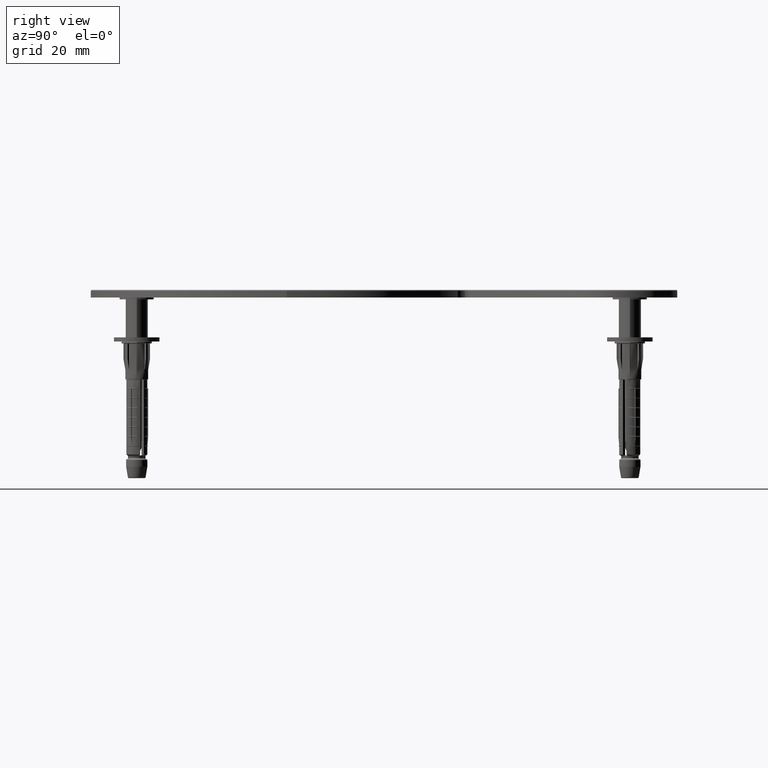
[diagram: clean part render]
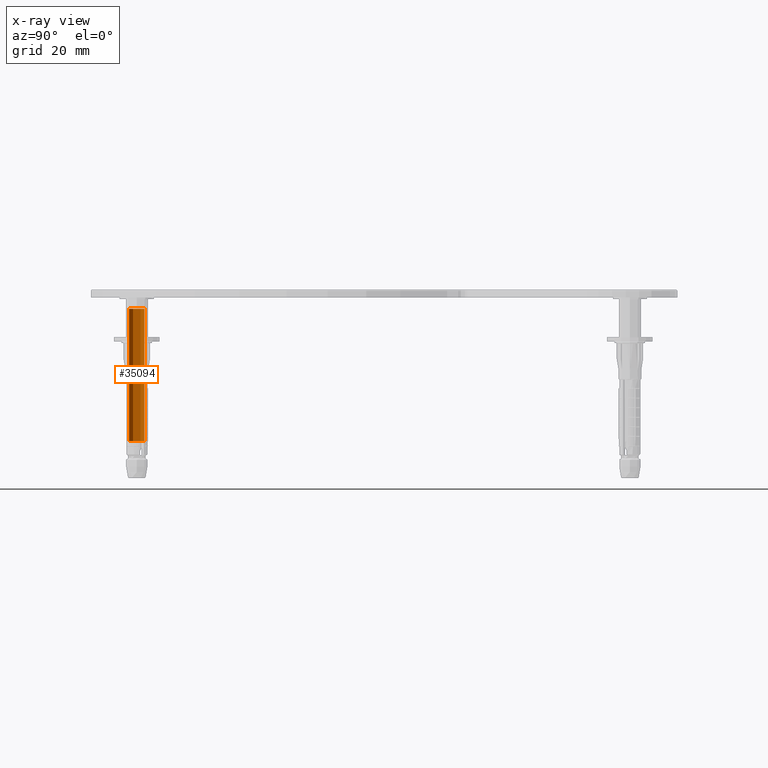
[diagram: x-ray — body ghosted, one internal face saturated and labeled with its STEP entity id]
A machine part, right view, then the same camera in x-ray: the body is ghosted and one INTERNAL B-rep face — a face not visible from any outside direction — is saturated and labeled: STEP entity #35094.
In plain terms, the highlighted cylindrical surface (edge-blend (fillet) strip) has radius 2 mm, axis along (-0, -0, -1).
Its self-contained STEP definition (entity closure, byte-faithful):
#92 = CARTESIAN_POINT ( 'NONE',  ( 2.449293598294702963E-16, -1.999999999999981792, -35.40999999999990422 ) ) ;
#560 = DIRECTION ( 'NONE',  ( 1.314919014442269209E-41, 1.000000000000000000, 0.000000000000000000 ) ) ;
#584 = AXIS2_PLACEMENT_3D ( 'NONE', #36523, #6320, #24768 ) ;
#949 = CARTESIAN_POINT ( 'NONE',  ( 0.000000000000000000, 1.387778780781445676E-14, -39.99999999999988631 ) ) ;
#1037 = CARTESIAN_POINT ( 'NONE',  ( 2.629838028884532811E-41, 2.000000000000009770, -35.40999999999990422 ) ) ;
#2187 = VERTEX_POINT ( 'NONE', #1037 ) ;
#2456 = ORIENTED_EDGE ( 'NONE', *, *, #32505, .T. ) ;
#2508 = ORIENTED_EDGE ( 'NONE', *, *, #19493, .F. ) ;
#3002 = DIRECTION ( 'NONE',  ( 1.314919014442269209E-41, 1.000000000000000000, 0.000000000000000000 ) ) ;
#3792 = FACE_OUTER_BOUND ( 'NONE', #14318, .T. ) ;
#4465 = ORIENTED_EDGE ( 'NONE', *, *, #34034, .T. ) ;
#4748 = CYLINDRICAL_SURFACE ( 'NONE', #22634, 1.999999999999995781 ) ;
#5283 = LINE ( 'NONE', #5651, #22051 ) ;
#5651 = CARTESIAN_POINT ( 'NONE',  ( 2.629838028884532811E-41, 2.000000000000009770, -39.99999999999988631 ) ) ;
#6193 = VERTEX_POINT ( 'NONE', #31525 ) ;
#6320 = DIRECTION ( 'NONE',  ( -2.548694494986879549E-32, -1.530808498934202910E-17, -1.000000000000000000 ) ) ;
#6447 = VERTEX_POINT ( 'NONE', #92 ) ;
#10758 = AXIS2_PLACEMENT_3D ( 'NONE', #18528, #36961, #3002 ) ;
#12019 = CARTESIAN_POINT ( 'NONE',  ( 2.449293598294697047E-16, -1.999999999999981792, -39.99999999999988631 ) ) ;
#13452 = EDGE_CURVE ( 'NONE', #6193, #6447, #33070, .T. ) ;
#14318 = EDGE_LOOP ( 'NONE', ( #16530, #2456, #4465, #2508 ) ) ;
#15833 = CIRCLE ( 'NONE', #584, 1.999999999999995781 ) ;
#16530 = ORIENTED_EDGE ( 'NONE', *, *, #13452, .F. ) ;
#18528 = CARTESIAN_POINT ( 'NONE',  ( 0.000000000000000000, 1.387778780781445676E-14, -35.40999999999990422 ) ) ;
#19493 = EDGE_CURVE ( 'NONE', #6447, #2187, #38457, .T. ) ;
#22051 = VECTOR ( 'NONE', #32923, 1000.000000000000000 ) ;
#22634 = AXIS2_PLACEMENT_3D ( 'NONE', #949, #34360, #560 ) ;
#23973 = VECTOR ( 'NONE', #26853, 1000.000000000000000 ) ;
#24768 = DIRECTION ( 'NONE',  ( -1.314919014442268700E-41, -1.000000000000000000, 0.000000000000000000 ) ) ;
#26853 = DIRECTION ( 'NONE',  ( -2.548694494986879549E-32, -1.530808498934207841E-17, -1.000000000000000000 ) ) ;
#31525 = CARTESIAN_POINT ( 'NONE',  ( 2.449293598294719726E-16, -1.999999999999995781, -0.5000000000000073275 ) ) ;
#31883 = CARTESIAN_POINT ( 'NONE',  ( 5.618597014461522366E-31, 1.999999999999995781, -0.5000000000000073275 ) ) ;
#32505 = EDGE_CURVE ( 'NONE', #6193, #33778, #15833, .T. ) ;
#32923 = DIRECTION ( 'NONE',  ( -2.548694494986879549E-32, -1.530808498934207841E-17, -1.000000000000000000 ) ) ;
#33070 = LINE ( 'NONE', #12019, #23973 ) ;
#33778 = VERTEX_POINT ( 'NONE', #31883 ) ;
#34034 = EDGE_CURVE ( 'NONE', #33778, #2187, #5283, .T. ) ;
#34360 = DIRECTION ( 'NONE',  ( -2.548694494986879549E-32, -1.530808498934207841E-17, -1.000000000000000000 ) ) ;
#35094 = ADVANCED_FACE ( 'NONE', ( #3792 ), #4748, .T. ) ;
#36523 = CARTESIAN_POINT ( 'NONE',  ( 0.000000000000000000, 0.000000000000000000, -0.5000000000000073275 ) ) ;
#36961 = DIRECTION ( 'NONE',  ( -2.548694494986879549E-32, -1.530808498934207841E-17, -1.000000000000000000 ) ) ;
#38457 = CIRCLE ( 'NONE', #10758, 1.999999999999995781 ) ;